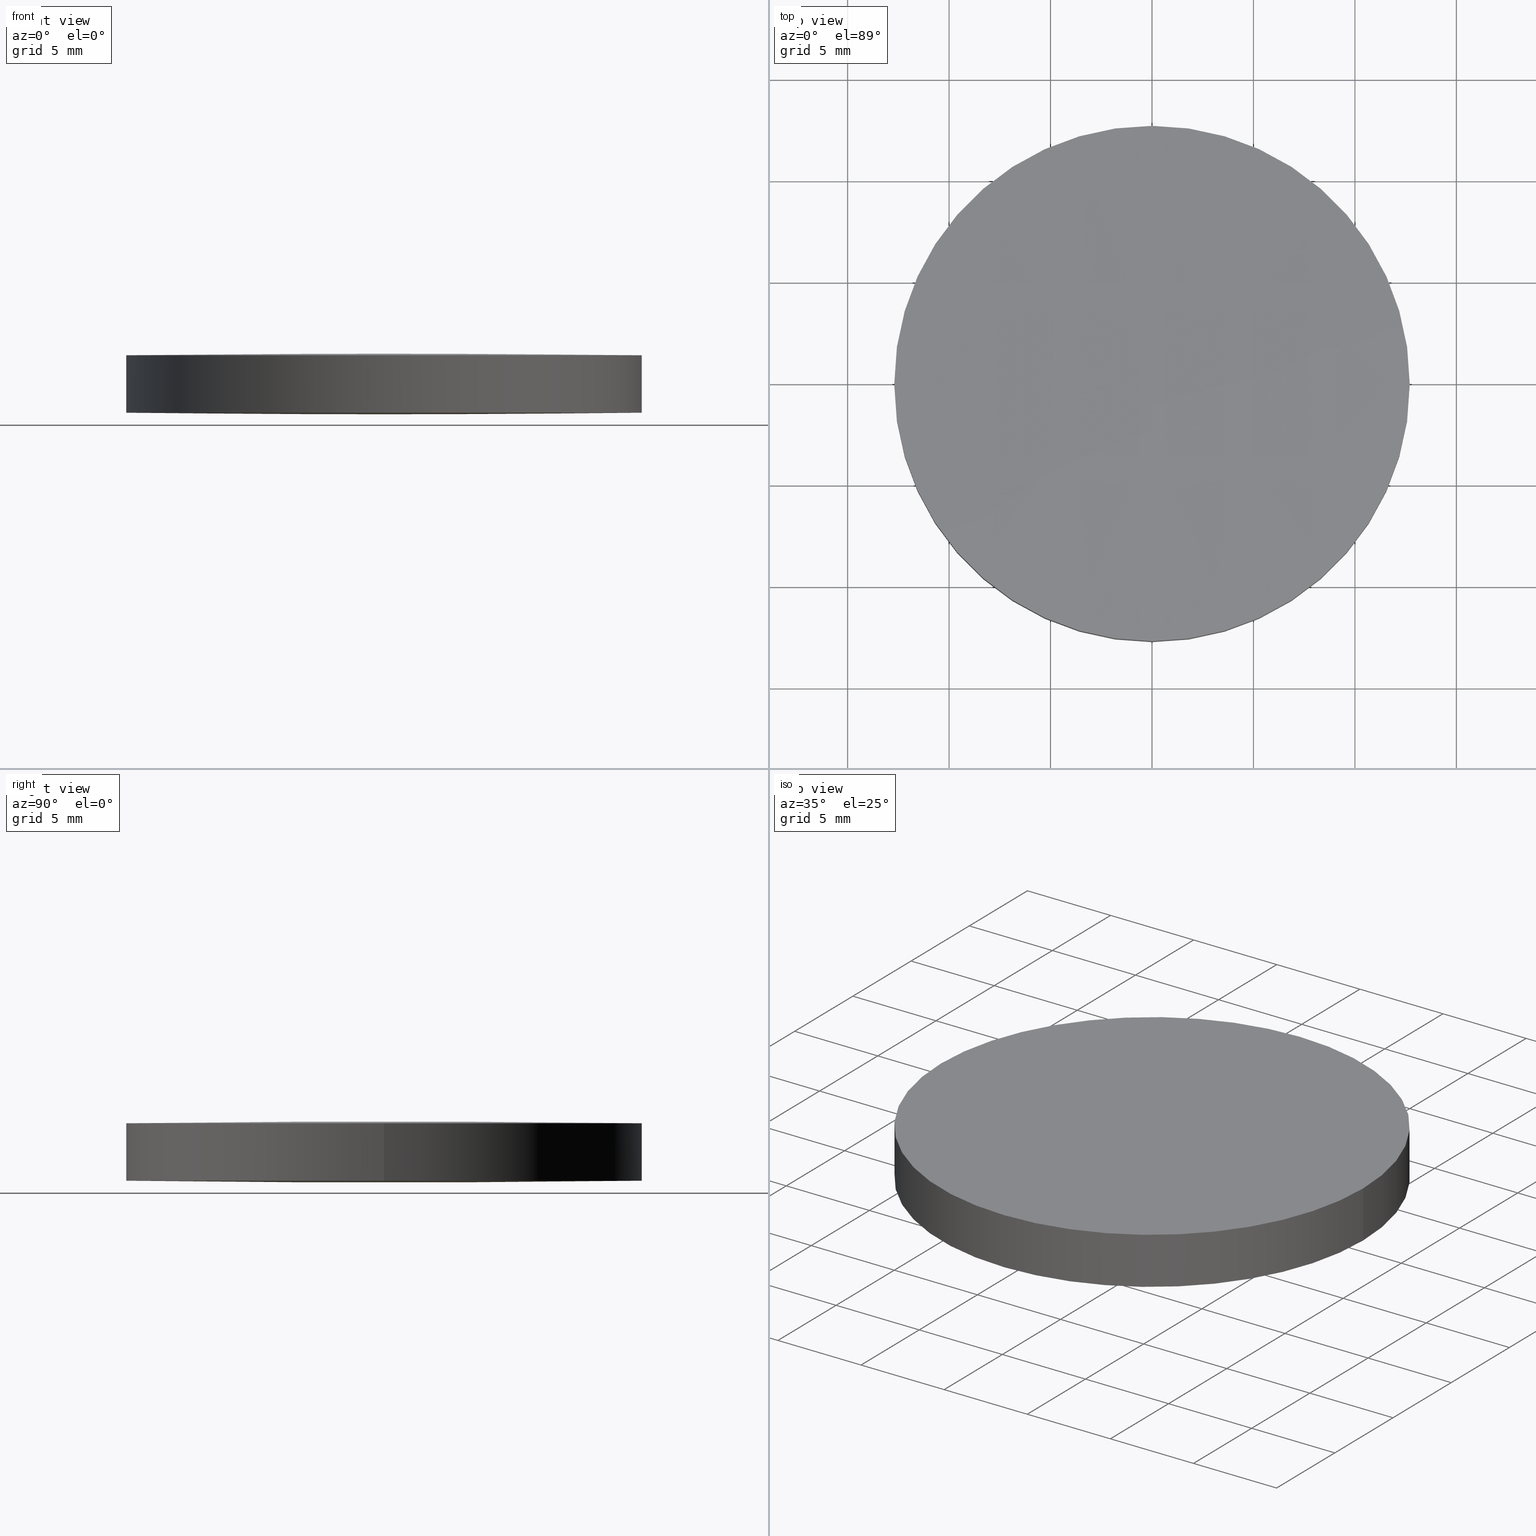
[diagram: canonical four-view strip — front | top / right | iso, engineering-drawing reading convention]
A machine part, canonical four-view strip (front | top / right | iso — engineering-drawing reading convention). The complete STEP part file that produces these views, byte-faithful:
ISO-10303-21;
HEADER;
FILE_DESCRIPTION (( 'STEP AP203' ),
    '1' );
FILE_NAME ('111-1260E UVFS bi-cx 25.4 F1000.STEP',
    '2019-01-07T12:38:46',
    ( '' ),
    ( '' ),
    'SwSTEP 2.0',
    'SolidWorks 2017',
    '' );
FILE_SCHEMA (( 'CONFIG_CONTROL_DESIGN' ));
ENDSEC;

DATA;
#1 = PRODUCT_DEFINITION ( 'UNKNOWN', '', #26, #247 ) ;
#2 = DIRECTION ( 'NONE',  ( 1.000000000000000000, 0.0000000000000000000, 0.0000000000000000000 ) ) ;
#3 = DIRECTION ( 'NONE',  ( 1.000000000000000000, 0.0000000000000000000, 0.0000000000000000000 ) ) ;
#4 = COORDINATED_UNIVERSAL_TIME_OFFSET ( 2, 0, .AHEAD. ) ;
#5 = DIRECTION ( 'NONE',  ( -0.0000000000000000000, -0.0000000000000000000, -1.000000000000000000 ) ) ;
#6 = APPROVAL ( #150, 'UNSPECIFIED' ) ;
#7 = CARTESIAN_POINT ( 'NONE',  ( -4.258503345560322700, -12.85239078956216800, 0.08678758069330495800 ) ) ;
#8 = APPROVAL_PERSON_ORGANIZATION ( #258, #32, #288 ) ;
#9 = ORIENTED_EDGE ( 'NONE', *, *, #70, .T. ) ;
#10 = CARTESIAN_POINT ( 'NONE',  ( 4.996003610813200500E-016, 2.442490654175340100E-015, 2.915258389649820100 ) ) ;
#11 = CARTESIAN_POINT ( 'NONE',  ( -12.77658382230925400, -4.284390731756754900, 0.05683319972356466000 ) ) ;
#12 = ADVANCED_BREP_SHAPE_REPRESENTATION ( '111-1260E UVFS bi-cx 25.4 F1000', ( #289, #223 ), #216 ) ;
#13 = CARTESIAN_POINT ( 'NONE',  ( -12.69999999999999900, 3.997792089092478900E-015, 0.08474161035017510600 ) ) ;
#14 = CC_DESIGN_PERSON_AND_ORGANIZATION_ASSIGNMENT ( #286, #16, ( #89 ) ) ;
#15 = CIRCLE ( 'NONE', #174, 12.69999999999999900 ) ;
#16 = PERSON_AND_ORGANIZATION_ROLE ( 'design_owner' ) ;
#17 = COORDINATED_UNIVERSAL_TIME_OFFSET ( 2, 0, .AHEAD. ) ;
#18 = CC_DESIGN_DATE_AND_TIME_ASSIGNMENT ( #158, #36, ( #1 ) ) ;
#19 = CIRCLE ( 'NONE', #186, 12.69999999999999900 ) ;
#20 = CC_DESIGN_SECURITY_CLASSIFICATION ( #293, ( #26 ) ) ;
#21 = LOCAL_TIME ( 14, 38, 46.00000000000000000, #17 ) ;
#22 = CARTESIAN_POINT ( 'NONE',  ( 4.996003610813200500E-016, 2.442490654175340100E-015, 0.08474161035017510600 ) ) ;
#23 = CARTESIAN_POINT ( 'NONE',  ( 8.516910752289769300, -12.85239078956216800, 2.884627415225856900 ) ) ;
#24 = LINE ( 'NONE', #68, #294 ) ;
#25 =( BOUNDED_SURFACE ( )  B_SPLINE_SURFACE ( 3, 3, ( 
 ( #231, #23, #135, #112 ),
 ( #114, #49, #205, #88 ),
 ( #69, #256, #230, #257 ),
 ( #280, #202, #179, #276 ) ),
 .UNSPECIFIED., .F., .F., .F. ) 
 B_SPLINE_SURFACE_WITH_KNOTS ( ( 4, 4 ),
 ( 4, 4 ),
 ( 0.0000000000000000000, 1.000000000000000000 ),
 ( 0.0000000000000000000, 1.000000000000000000 ),
 .UNSPECIFIED. ) 
 GEOMETRIC_REPRESENTATION_ITEM ( )  RATIONAL_B_SPLINE_SURFACE ( (
 ( 1.000000000000000000, 0.9999849808218425100, 0.9999849808218425100, 1.000000000000000000),
 ( 0.9999392052252507000, 0.9999241869601808200, 0.9999241869601808200, 0.9999392052252507000),
 ( 0.9999392052252507000, 0.9999241869601808200, 0.9999241869601808200, 0.9999392052252507000),
 ( 1.000000000000000000, 0.9999849808218425100, 0.9999849808218425100, 1.000000000000000000) ) ) 
 REPRESENTATION_ITEM ( '' )  SURFACE ( )  );
#26 = PRODUCT_DEFINITION_FORMATION_WITH_SPECIFIED_SOURCE ( 'ANY', '', #89, .NOT_KNOWN. ) ;
#27 = CARTESIAN_POINT ( 'NONE',  ( -12.69999999999999900, 3.997792089092478900E-015, 0.08474161035017510600 ) ) ;
#28 = CARTESIAN_POINT ( 'NONE',  ( -8.517946429817161700, 4.284390731757091500, -0.0003424723268542347300 ) ) ;
#29 = CARTESIAN_POINT ( 'NONE',  ( -4.259021190157219500, -4.284390731756754900, -0.02893095241527783200 ) ) ;
#30 = COORDINATED_UNIVERSAL_TIME_OFFSET ( 2, 0, .AHEAD. ) ;
#31 = CARTESIAN_POINT ( 'NONE',  ( -2.307182223049153400E-013, 12.85239078956250600, 0.08678758069330393100 ) ) ;
#32 = APPROVAL ( #218, 'UNSPECIFIED' ) ;
#33 = CARTESIAN_POINT ( 'NONE',  ( -12.77658382230925400, 4.284390731757091500, 0.05683319972356571500 ) ) ;
#34 = PERSON_AND_ORGANIZATION ( #84, #188 ) ;
#35 = CARTESIAN_POINT ( 'NONE',  ( 12.77658382230899300, 4.284390731757091500, 0.05683319972362106000 ) ) ;
#36 = DATE_TIME_ROLE ( 'creation_date' ) ;
#37 = APPLICATION_CONTEXT ( 'configuration controlled 3d designs of mechanical parts and assemblies' ) ;
#38 = PRODUCT_RELATED_PRODUCT_CATEGORY ( 'detail', '', ( #89 ) ) ;
#39 = LOCAL_TIME ( 14, 38, 46.00000000000000000, #4 ) ;
#40 = PERSON_AND_ORGANIZATION_ROLE ( 'creator' ) ;
#41 = LINE ( 'NONE', #13, #154 ) ;
#42 = AXIS2_PLACEMENT_3D ( 'NONE', #183, #87, #137 ) ;
#43 = VERTEX_POINT ( 'NONE', #157 ) ;
#44 = AXIS2_PLACEMENT_3D ( 'NONE', #275, #133, #2 ) ;
#45 = CARTESIAN_POINT ( 'NONE',  ( -12.69999999999999900, 3.997792089092478900E-015, 2.915258389649820100 ) ) ;
#46 = FACE_OUTER_BOUND ( 'NONE', #170, .T. ) ;
#47 = CC_DESIGN_APPROVAL ( #6, ( #293 ) ) ;
#48 = CARTESIAN_POINT ( 'NONE',  ( 0.0000000000000000000, -12.70000000000168900, 2.915258389649804100 ) ) ;
#49 = CARTESIAN_POINT ( 'NONE',  ( 8.517946429817161700, -4.284390731756754900, 3.000342472326858400 ) ) ;
#50 = CALENDAR_DATE ( 2019, 7, 1 ) ;
#51 = ORIENTED_EDGE ( 'NONE', *, *, #161, .F. ) ;
#52 = VERTEX_POINT ( 'NONE', #48 ) ;
#53 = DIRECTION ( 'NONE',  ( 1.000000000000000000, 0.0000000000000000000, 0.0000000000000000000 ) ) ;
#54 = PRODUCT_DEFINITION_SHAPE ( 'NONE', 'NONE',  #1 ) ;
#55 = CARTESIAN_POINT ( 'NONE',  ( -12.77658382230899300, -4.284390731756754900, 2.943166800276382200 ) ) ;
#56 = CARTESIAN_POINT ( 'NONE',  ( 4.258503345560082000, -12.85239078956216800, 0.08678758069335934500 ) ) ;
#57 = LOCAL_TIME ( 14, 38, 46.00000000000000000, #166 ) ;
#58 = ORIENTED_EDGE ( 'NONE', *, *, #177, .T. ) ;
#59 = CARTESIAN_POINT ( 'NONE',  ( -4.258503345560082000, 12.85239078956250400, 2.913212419306642900 ) ) ;
#60 = DIRECTION ( 'NONE',  ( 0.0000000000000000000, 0.0000000000000000000, 1.000000000000000000 ) ) ;
#61 = DIRECTION ( 'NONE',  ( 1.000000000000000000, 0.0000000000000000000, 0.0000000000000000000 ) ) ;
#62 = APPROVAL_STATUS ( 'not_yet_approved' ) ;
#63 = APPROVAL_ROLE ( '' ) ;
#64 = CC_DESIGN_PERSON_AND_ORGANIZATION_ASSIGNMENT ( #128, #124, ( #293 ) ) ;
#65 = ORIENTED_EDGE ( 'NONE', *, *, #127, .F. ) ;
#66 = DIRECTION ( 'NONE',  ( 0.0000000000000000000, -1.000000000000000000, 0.0000000000000000000 ) ) ;
#67 = ADVANCED_FACE ( 'NONE', ( #229 ), #121, .T. ) ;
#68 = CARTESIAN_POINT ( 'NONE',  ( 12.69999999999999900, 2.442490654175340100E-015, 0.08474161035017510600 ) ) ;
#69 = CARTESIAN_POINT ( 'NONE',  ( 12.77658382230925400, 4.284390731757091500, 2.943166800276436400 ) ) ;
#70 = EDGE_CURVE ( 'NONE', #274, #43, #24, .T. ) ;
#71 = DIRECTION ( 'NONE',  ( 1.000000000000000000, 0.0000000000000000000, 0.0000000000000000000 ) ) ;
#72 = CARTESIAN_POINT ( 'NONE',  ( 4.996003610813200500E-016, 2.442490654175340100E-015, 2.915258389649820100 ) ) ;
#73 = EDGE_LOOP ( 'NONE', ( #51, #138, #287 ) ) ;
#74 = CARTESIAN_POINT ( 'NONE',  ( 8.516910752289517100, -12.85239078956216800, 0.1153725847742025100 ) ) ;
#75 = CC_DESIGN_DATE_AND_TIME_ASSIGNMENT ( #115, #292, ( #293 ) ) ;
#76 = CARTESIAN_POINT ( 'NONE',  ( 0.0000000000000000000, -12.85239078956216800, 0.08678758069335934500 ) ) ;
#77 = DIRECTION ( 'NONE',  ( -1.000000000000000000, 0.0000000000000000000, 0.0000000000000000000 ) ) ;
#78 = ORIENTED_EDGE ( 'NONE', *, *, #126, .F. ) ;
#79 = ORIENTED_EDGE ( 'NONE', *, *, #95, .F. ) ;
#80 = CARTESIAN_POINT ( 'NONE',  ( 0.0000000000000000000, -4.284390731756754900, -0.02893095241522345200 ) ) ;
#81 = CARTESIAN_POINT ( 'NONE',  ( 8.517946429816911200, -4.284390731756754900, -0.0003424723267986693700 ) ) ;
#82 = CIRCLE ( 'NONE', #131, 12.69999999999999900 ) ;
#83 = ORIENTED_EDGE ( 'NONE', *, *, #208, .T. ) ;
#84 = PERSON ( 'UNSPECIFIED', 'UNSPECIFIED', 'UNSPECIFIED', ('UNSPECIFIED'), ('UNSPECIFIED'), ('UNSPECIFIED') ) ;
#85 =( BOUNDED_SURFACE ( )  B_SPLINE_SURFACE ( 3, 3, ( 
 ( #76, #56, #74, #118 ),
 ( #80, #217, #81, #152 ),
 ( #192, #168, #268, #35 ),
 ( #194, #215, #221, #246 ) ),
 .UNSPECIFIED., .F., .F., .F. ) 
 B_SPLINE_SURFACE_WITH_KNOTS ( ( 4, 4 ),
 ( 4, 4 ),
 ( 0.0000000000000000000, 1.000000000000000000 ),
 ( 0.0000000000000000000, 1.000000000000000000 ),
 .UNSPECIFIED. ) 
 GEOMETRIC_REPRESENTATION_ITEM ( )  RATIONAL_B_SPLINE_SURFACE ( (
 ( 1.000000000000000000, 0.9999849808218425100, 0.9999849808218425100, 1.000000000000000000),
 ( 0.9999392052252507000, 0.9999241869601808200, 0.9999241869601808200, 0.9999392052252507000),
 ( 0.9999392052252507000, 0.9999241869601808200, 0.9999241869601808200, 0.9999392052252507000),
 ( 1.000000000000000000, 0.9999849808218425100, 0.9999849808218425100, 1.000000000000000000) ) ) 
 REPRESENTATION_ITEM ( '' )  SURFACE ( )  );
#86 = PERSON_AND_ORGANIZATION ( #84, #188 ) ;
#87 = DIRECTION ( 'NONE',  ( -0.0000000000000000000, -0.0000000000000000000, -1.000000000000000000 ) ) ;
#88 = CARTESIAN_POINT ( 'NONE',  ( 2.307182223049153400E-013, -4.284390731756754900, 3.028930952415281200 ) ) ;
#89 = PRODUCT ( '111-1260E UVFS bi-cx 25.4 F1000', '111-1260E UVFS bi-cx 25.4 F1000', '', ( #149 ) ) ;
#90 = DIRECTION ( 'NONE',  ( 1.000000000000000000, 0.0000000000000000000, 0.0000000000000000000 ) ) ;
#91 = ADVANCED_FACE ( 'NONE', ( #46 ), #25, .T. ) ;
#92 = CARTESIAN_POINT ( 'NONE',  ( -8.516910752289769300, 12.85239078956250400, 0.1153725847741458700 ) ) ;
#93 = CARTESIAN_POINT ( 'NONE',  ( -8.516910752289769300, -12.85239078956216800, 0.1153725847741458700 ) ) ;
#94 = FACE_OUTER_BOUND ( 'NONE', #239, .T. ) ;
#95 = EDGE_CURVE ( 'NONE', #107, #96, #19, .T. ) ;
#96 = VERTEX_POINT ( 'NONE', #180 ) ;
#97 = CARTESIAN_POINT ( 'NONE',  ( -8.517946429816911200, -4.284390731756754900, 3.000342472326801500 ) ) ;
#98 = CARTESIAN_POINT ( 'NONE',  ( -12.77658382230899300, 4.284390731757091500, 2.943166800276381300 ) ) ;
#99 = APPROVAL_DATE_TIME ( #119, #32 ) ;
#100 = CIRCLE ( 'NONE', #42, 12.69999999999999900 ) ;
#101 = DIRECTION ( 'NONE',  ( 0.0000000000000000000, 0.0000000000000000000, 1.000000000000000000 ) ) ;
#102 = ORIENTED_EDGE ( 'NONE', *, *, #284, .F. ) ;
#103 = DIRECTION ( 'NONE',  ( 1.000000000000000000, 0.0000000000000000000, 0.0000000000000000000 ) ) ;
#104 = AXIS2_PLACEMENT_3D ( 'NONE', #207, #71, #66 ) ;
#105 = PERSON_AND_ORGANIZATION_ROLE ( 'design_supplier' ) ;
#106 = APPROVAL_DATE_TIME ( #219, #6 ) ;
#107 = VERTEX_POINT ( 'NONE', #27 ) ;
#108 = CALENDAR_DATE ( 2019, 7, 1 ) ;
#109 = ORIENTED_EDGE ( 'NONE', *, *, #161, .T. ) ;
#110 =( BOUNDED_SURFACE ( )  B_SPLINE_SURFACE ( 3, 3, ( 
 ( #212, #93, #7, #264 ),
 ( #11, #167, #29, #164 ),
 ( #33, #28, #117, #281 ),
 ( #143, #92, #190, #31 ) ),
 .UNSPECIFIED., .F., .F., .T. ) 
 B_SPLINE_SURFACE_WITH_KNOTS ( ( 4, 4 ),
 ( 4, 4 ),
 ( 0.0000000000000000000, 1.000000000000000000 ),
 ( 0.0000000000000000000, 1.000000000000000000 ),
 .UNSPECIFIED. ) 
 GEOMETRIC_REPRESENTATION_ITEM ( )  RATIONAL_B_SPLINE_SURFACE ( (
 ( 1.000000000000000000, 0.9999849808218425100, 0.9999849808218425100, 1.000000000000000000),
 ( 0.9999392052252507000, 0.9999241869601808200, 0.9999241869601808200, 0.9999392052252507000),
 ( 0.9999392052252507000, 0.9999241869601808200, 0.9999241869601808200, 0.9999392052252507000),
 ( 1.000000000000000000, 0.9999849808218425100, 0.9999849808218425100, 1.000000000000000000) ) ) 
 REPRESENTATION_ITEM ( '' )  SURFACE ( )  );
#111 = SHAPE_DEFINITION_REPRESENTATION ( #54, #12 ) ;
#112 = CARTESIAN_POINT ( 'NONE',  ( 2.307182223049153400E-013, -12.85239078956216800, 2.913212419306698800 ) ) ;
#113 = ORIENTED_EDGE ( 'NONE', *, *, #177, .F. ) ;
#114 = CARTESIAN_POINT ( 'NONE',  ( 12.77658382230925400, -4.284390731756754900, 2.943166800276437700 ) ) ;
#115 = DATE_AND_TIME ( #248, #39 ) ;
#116 = CARTESIAN_POINT ( 'NONE',  ( -8.517946429816911200, 4.284390731757091500, 3.000342472326800600 ) ) ;
#117 = CARTESIAN_POINT ( 'NONE',  ( -4.259021190157219500, 4.284390731757091500, -0.02893095241527677400 ) ) ;
#118 = CARTESIAN_POINT ( 'NONE',  ( 12.77503034684978200, -12.85239078956216800, 0.1725413049660782800 ) ) ;
#119 = DATE_AND_TIME ( #178, #249 ) ;
#120 = DIRECTION ( 'NONE',  ( 1.000000000000000000, 0.0000000000000000000, 0.0000000000000000000 ) ) ;
#121 = CYLINDRICAL_SURFACE ( 'NONE', #141, 12.69999999999999900 ) ;
#122 =( NAMED_UNIT ( * ) PLANE_ANGLE_UNIT ( ) SI_UNIT ( $, .RADIAN. ) );
#123 = ORIENTED_EDGE ( 'NONE', *, *, #252, .F. ) ;
#124 = PERSON_AND_ORGANIZATION_ROLE ( 'classification_officer' ) ;
#125 = DIRECTION ( 'NONE',  ( -0.0000000000000000000, -0.0000000000000000000, -1.000000000000000000 ) ) ;
#126 = EDGE_CURVE ( 'NONE', #43, #52, #100, .T. ) ;
#127 = EDGE_CURVE ( 'NONE', #200, #96, #159, .T. ) ;
#128 = PERSON_AND_ORGANIZATION ( #84, #188 ) ;
#129 = CIRCLE ( 'NONE', #156, 12.69999999999999900 ) ;
#130 = ORIENTED_EDGE ( 'NONE', *, *, #145, .T. ) ;
#131 = AXIS2_PLACEMENT_3D ( 'NONE', #290, #125, #103 ) ;
#132 = APPROVAL_PERSON_ORGANIZATION ( #266, #295, #63 ) ;
#133 = DIRECTION ( 'NONE',  ( -0.0000000000000000000, -0.0000000000000000000, -1.000000000000000000 ) ) ;
#134 = DIRECTION ( 'NONE',  ( 0.0000000000000000000, 0.0000000000000000000, 1.000000000000000000 ) ) ;
#135 = CARTESIAN_POINT ( 'NONE',  ( 4.258503345560322700, -12.85239078956216800, 2.913212419306697500 ) ) ;
#136 = AXIS2_PLACEMENT_3D ( 'NONE', #10, #261, #139 ) ;
#137 = DIRECTION ( 'NONE',  ( 1.000000000000000000, 0.0000000000000000000, 0.0000000000000000000 ) ) ;
#138 = ORIENTED_EDGE ( 'NONE', *, *, #252, .T. ) ;
#139 = DIRECTION ( 'NONE',  ( 1.000000000000000000, 0.0000000000000000000, 0.0000000000000000000 ) ) ;
#140 = DIRECTION ( 'NONE',  ( -0.0000000000000000000, -0.0000000000000000000, -1.000000000000000000 ) ) ;
#141 = AXIS2_PLACEMENT_3D ( 'NONE', #255, #134, #3 ) ;
#142 = CIRCLE ( 'NONE', #227, 12.69999999999999900 ) ;
#143 = CARTESIAN_POINT ( 'NONE',  ( -12.77503034685004100, 12.85239078956250600, 0.1725413049660229300 ) ) ;
#144 = CARTESIAN_POINT ( 'NONE',  ( 0.0000000000000000000, -12.85239078956216800, 2.913212419306643300 ) ) ;
#145 = EDGE_CURVE ( 'NONE', #96, #274, #147, .T. ) ;
#146 = CYLINDRICAL_SURFACE ( 'NONE', #197, 12.69999999999999900 ) ;
#147 = CIRCLE ( 'NONE', #44, 12.69999999999999900 ) ;
#148 = DIRECTION ( 'NONE',  ( 0.0000000000000000000, 0.0000000000000000000, 1.000000000000000000 ) ) ;
#149 = MECHANICAL_CONTEXT ( 'NONE', #37, 'mechanical' ) ;
#150 = APPROVAL_STATUS ( 'not_yet_approved' ) ;
#151 = APPROVAL_PERSON_ORGANIZATION ( #253, #6, #265 ) ;
#152 = CARTESIAN_POINT ( 'NONE',  ( 12.77658382230899300, -4.284390731756754900, 0.05683319972362000500 ) ) ;
#153 = ORIENTED_EDGE ( 'NONE', *, *, #145, .F. ) ;
#154 = VECTOR ( 'NONE', #148, 1000.000000000000000 ) ;
#155 = VERTEX_POINT ( 'NONE', #45 ) ;
#156 = AXIS2_PLACEMENT_3D ( 'NONE', #283, #140, #211 ) ;
#157 = CARTESIAN_POINT ( 'NONE',  ( 12.69999999999999900, 2.442490654175340100E-015, 2.915258389649820100 ) ) ;
#158 = DATE_AND_TIME ( #254, #21 ) ;
#159 = CIRCLE ( 'NONE', #104, 951.7000000000000500 ) ;
#160 = CARTESIAN_POINT ( 'NONE',  ( 0.0000000000000000000, 12.70000000000191800, 2.915258389649804100 ) ) ;
#161 = EDGE_CURVE ( 'NONE', #52, #155, #225, .T. ) ;
#162 = VERTEX_POINT ( 'NONE', #160 ) ;
#163 = CARTESIAN_POINT ( 'NONE',  ( -8.516910752289518900, -12.85239078956216800, 2.884627415225800000 ) ) ;
#164 = CARTESIAN_POINT ( 'NONE',  ( -2.307182223049153400E-013, -4.284390731756754900, -0.02893095241527887000 ) ) ;
#165 = CARTESIAN_POINT ( 'NONE',  ( 0.0000000000000000000, 4.284390731757091500, 3.028930952415224800 ) ) ;
#166 = COORDINATED_UNIVERSAL_TIME_OFFSET ( 2, 0, .AHEAD. ) ;
#167 = CARTESIAN_POINT ( 'NONE',  ( -8.517946429817161700, -4.284390731756754900, -0.0003424723268552918300 ) ) ;
#168 = CARTESIAN_POINT ( 'NONE',  ( 4.259021190156979700, 4.284390731757091500, -0.02893095241522240100 ) ) ;
#169 = APPLICATION_CONTEXT ( 'configuration controlled 3d designs of mechanical parts and assemblies' ) ;
#170 = EDGE_LOOP ( 'NONE', ( #123, #78, #113 ) ) ;
#171 = ORIENTED_EDGE ( 'NONE', *, *, #251, .F. ) ;
#172 = DIRECTION ( 'NONE',  ( 0.0000000000000000000, -1.000000000000000000, 0.0000000000000000000 ) ) ;
#173 = APPLICATION_PROTOCOL_DEFINITION ( 'international standard', 'config_control_design', 1994, #37 ) ;
#174 = AXIS2_PLACEMENT_3D ( 'NONE', #72, #184, #53 ) ;
#175 = EDGE_CURVE ( 'NONE', #155, #162, #129, .T. ) ;
#176 = LOCAL_TIME ( 14, 38, 46.00000000000000000, #238 ) ;
#177 = EDGE_CURVE ( 'NONE', #162, #43, #15, .T. ) ;
#178 = CALENDAR_DATE ( 2019, 7, 1 ) ;
#179 = CARTESIAN_POINT ( 'NONE',  ( 4.258503345560322700, 12.85239078956250400, 2.913212419306697500 ) ) ;
#180 = CARTESIAN_POINT ( 'NONE',  ( 0.0000000000000000000, 12.70000000000191800, 0.08474161035019461800 ) ) ;
#181 = ADVANCED_FACE ( 'NONE', ( #259 ), #110, .T. ) ;
#182 = ORIENTED_EDGE ( 'NONE', *, *, #70, .F. ) ;
#183 = CARTESIAN_POINT ( 'NONE',  ( 4.996003610813200500E-016, 2.442490654175340100E-015, 2.915258389649820100 ) ) ;
#184 = DIRECTION ( 'NONE',  ( -0.0000000000000000000, -0.0000000000000000000, -1.000000000000000000 ) ) ;
#185 = CARTESIAN_POINT ( 'NONE',  ( 0.0000000000000000000, 12.85239078956250600, 2.913212419306643300 ) ) ;
#186 = AXIS2_PLACEMENT_3D ( 'NONE', #22, #5, #90 ) ;
#187 = CARTESIAN_POINT ( 'NONE',  ( -4.258503345560082000, -12.85239078956216800, 2.913212419306642900 ) ) ;
#188 = ORGANIZATION ( 'UNSPECIFIED', 'UNSPECIFIED', '' ) ;
#189 = CARTESIAN_POINT ( 'NONE',  ( -4.259021190156979700, 4.284390731757091500, 3.028930952415225300 ) ) ;
#190 = CARTESIAN_POINT ( 'NONE',  ( -4.258503345560322700, 12.85239078956250400, 0.08678758069330495800 ) ) ;
#191 = CARTESIAN_POINT ( 'NONE',  ( 0.0000000000000000000, 2.273736754432320100E-013, -948.7000000000000500 ) ) ;
#192 = CARTESIAN_POINT ( 'NONE',  ( 0.0000000000000000000, 4.284390731757091500, -0.02893095241522239400 ) ) ;
#193 = CLOSED_SHELL ( 'NONE', ( #250, #199, #67, #181, #279, #91 ) ) ;
#194 = CARTESIAN_POINT ( 'NONE',  ( 0.0000000000000000000, 12.85239078956250600, 0.08678758069335934500 ) ) ;
#195 = CARTESIAN_POINT ( 'NONE',  ( 0.0000000000000000000, 0.0000000000000000000, 0.0000000000000000000 ) ) ;
#196 = SECURITY_CLASSIFICATION_LEVEL ( 'unclassified' ) ;
#197 = AXIS2_PLACEMENT_3D ( 'NONE', #271, #60, #241 ) ;
#198 = PERSON_AND_ORGANIZATION ( #84, #188 ) ;
#199 = ADVANCED_FACE ( 'NONE', ( #220 ), #206, .T. ) ;
#200 = VERTEX_POINT ( 'NONE', #234 ) ;
#201 = UNCERTAINTY_MEASURE_WITH_UNIT (LENGTH_MEASURE( 1.000000000000000100E-005 ), #242, 'distance_accuracy_value', 'NONE');
#202 = CARTESIAN_POINT ( 'NONE',  ( 8.516910752289769300, 12.85239078956250400, 2.884627415225856900 ) ) ;
#203 = CIRCLE ( 'NONE', #232, 951.7000000000000500 ) ;
#204 = EDGE_LOOP ( 'NONE', ( #79, #214, #267, #58, #182, #153 ) ) ;
#205 = CARTESIAN_POINT ( 'NONE',  ( 4.259021190157219500, -4.284390731756754900, 3.028930952415280800 ) ) ;
#206 =( BOUNDED_SURFACE ( )  B_SPLINE_SURFACE ( 3, 3, ( 
 ( #144, #187, #163, #233 ),
 ( #240, #235, #97, #55 ),
 ( #165, #189, #116, #98 ),
 ( #185, #59, #213, #209 ) ),
 .UNSPECIFIED., .F., .F., .T. ) 
 B_SPLINE_SURFACE_WITH_KNOTS ( ( 4, 4 ),
 ( 4, 4 ),
 ( 0.0000000000000000000, 1.000000000000000000 ),
 ( 0.0000000000000000000, 1.000000000000000000 ),
 .UNSPECIFIED. ) 
 GEOMETRIC_REPRESENTATION_ITEM ( )  RATIONAL_B_SPLINE_SURFACE ( (
 ( 1.000000000000000000, 0.9999849808218425100, 0.9999849808218425100, 1.000000000000000000),
 ( 0.9999392052252507000, 0.9999241869601808200, 0.9999241869601808200, 0.9999392052252507000),
 ( 0.9999392052252507000, 0.9999241869601808200, 0.9999241869601808200, 0.9999392052252507000),
 ( 1.000000000000000000, 0.9999849808218425100, 0.9999849808218425100, 1.000000000000000000) ) ) 
 REPRESENTATION_ITEM ( '' )  SURFACE ( )  );
#207 = CARTESIAN_POINT ( 'NONE',  ( 0.0000000000000000000, 2.273736754432320100E-013, 951.7000000000000500 ) ) ;
#208 = EDGE_CURVE ( 'NONE', #200, #107, #142, .T. ) ;
#209 = CARTESIAN_POINT ( 'NONE',  ( -12.77503034684978200, 12.85239078956250600, 2.827458695033924200 ) ) ;
#210 = DATE_AND_TIME ( #108, #57 ) ;
#211 = DIRECTION ( 'NONE',  ( 1.000000000000000000, 0.0000000000000000000, 0.0000000000000000000 ) ) ;
#212 = CARTESIAN_POINT ( 'NONE',  ( -12.77503034685004100, -12.85239078956216800, 0.1725413049660229300 ) ) ;
#213 = CARTESIAN_POINT ( 'NONE',  ( -8.516910752289518900, 12.85239078956250400, 2.884627415225800000 ) ) ;
#214 = ORIENTED_EDGE ( 'NONE', *, *, #251, .T. ) ;
#215 = CARTESIAN_POINT ( 'NONE',  ( 4.258503345560082000, 12.85239078956250400, 0.08678758069335934500 ) ) ;
#216 =( GEOMETRIC_REPRESENTATION_CONTEXT ( 3 ) GLOBAL_UNCERTAINTY_ASSIGNED_CONTEXT ( ( #201 ) ) GLOBAL_UNIT_ASSIGNED_CONTEXT ( ( #242, #122, #291 ) ) REPRESENTATION_CONTEXT ( 'NONE', 'WORKASPACE' ) );
#217 = CARTESIAN_POINT ( 'NONE',  ( 4.259021190156979700, -4.284390731756754900, -0.02893095241522345600 ) ) ;
#218 = APPROVAL_STATUS ( 'not_yet_approved' ) ;
#219 = DATE_AND_TIME ( #50, #176 ) ;
#220 = FACE_OUTER_BOUND ( 'NONE', #73, .T. ) ;
#221 = CARTESIAN_POINT ( 'NONE',  ( 8.516910752289517100, 12.85239078956250400, 0.1153725847742025100 ) ) ;
#222 = ORIENTED_EDGE ( 'NONE', *, *, #95, .T. ) ;
#223 = AXIS2_PLACEMENT_3D ( 'NONE', #195, #101, #61 ) ;
#224 = APPROVAL_DATE_TIME ( #210, #295 ) ;
#225 = CIRCLE ( 'NONE', #136, 12.69999999999999900 ) ;
#226 = ORIENTED_EDGE ( 'NONE', *, *, #126, .T. ) ;
#227 = AXIS2_PLACEMENT_3D ( 'NONE', #285, #237, #120 ) ;
#228 = EDGE_LOOP ( 'NONE', ( #171, #243, #102, #9, #226, #109 ) ) ;
#229 = FACE_OUTER_BOUND ( 'NONE', #204, .T. ) ;
#230 = CARTESIAN_POINT ( 'NONE',  ( 4.259021190157219500, 4.284390731757091500, 3.028930952415279400 ) ) ;
#231 = CARTESIAN_POINT ( 'NONE',  ( 12.77503034685004100, -12.85239078956216800, 2.827458695033979700 ) ) ;
#232 = AXIS2_PLACEMENT_3D ( 'NONE', #191, #77, #172 ) ;
#233 = CARTESIAN_POINT ( 'NONE',  ( -12.77503034684978200, -12.85239078956216800, 2.827458695033924200 ) ) ;
#234 = CARTESIAN_POINT ( 'NONE',  ( 0.0000000000000000000, -12.70000000000168900, 0.08474161035019461800 ) ) ;
#235 = CARTESIAN_POINT ( 'NONE',  ( -4.259021190156979700, -4.284390731756754900, 3.028930952415226100 ) ) ;
#236 = CC_DESIGN_PERSON_AND_ORGANIZATION_ASSIGNMENT ( #86, #40, ( #1 ) ) ;
#237 = DIRECTION ( 'NONE',  ( -0.0000000000000000000, -0.0000000000000000000, -1.000000000000000000 ) ) ;
#238 = COORDINATED_UNIVERSAL_TIME_OFFSET ( 2, 0, .AHEAD. ) ;
#239 = EDGE_LOOP ( 'NONE', ( #282, #260, #130 ) ) ;
#240 = CARTESIAN_POINT ( 'NONE',  ( 0.0000000000000000000, -4.284390731756754900, 3.028930952415225700 ) ) ;
#241 = DIRECTION ( 'NONE',  ( 1.000000000000000000, 0.0000000000000000000, 0.0000000000000000000 ) ) ;
#242 =( LENGTH_UNIT ( ) NAMED_UNIT ( * ) SI_UNIT ( .MILLI., .METRE. ) );
#243 = ORIENTED_EDGE ( 'NONE', *, *, #208, .F. ) ;
#244 = PERSON_AND_ORGANIZATION_ROLE ( 'creator' ) ;
#245 = CC_DESIGN_APPROVAL ( #32, ( #26 ) ) ;
#246 = CARTESIAN_POINT ( 'NONE',  ( 12.77503034684978200, 12.85239078956250600, 0.1725413049660782800 ) ) ;
#247 = DESIGN_CONTEXT ( 'detailed design', #169, 'design' ) ;
#248 = CALENDAR_DATE ( 2019, 7, 1 ) ;
#249 = LOCAL_TIME ( 14, 38, 46.00000000000000000, #30 ) ;
#250 = ADVANCED_FACE ( 'NONE', ( #94 ), #85, .T. ) ;
#251 = EDGE_CURVE ( 'NONE', #107, #155, #41, .T. ) ;
#252 = EDGE_CURVE ( 'NONE', #52, #162, #203, .T. ) ;
#253 = PERSON_AND_ORGANIZATION ( #84, #188 ) ;
#254 = CALENDAR_DATE ( 2019, 7, 1 ) ;
#255 = CARTESIAN_POINT ( 'NONE',  ( 4.996003610813200500E-016, 2.442490654175340100E-015, 0.08474161035017510600 ) ) ;
#256 = CARTESIAN_POINT ( 'NONE',  ( 8.517946429817161700, 4.284390731757091500, 3.000342472326857000 ) ) ;
#257 = CARTESIAN_POINT ( 'NONE',  ( 2.307182223049153400E-013, 4.284390731757091500, 3.028930952415279900 ) ) ;
#258 = PERSON_AND_ORGANIZATION ( #84, #188 ) ;
#259 = FACE_OUTER_BOUND ( 'NONE', #272, .T. ) ;
#260 = ORIENTED_EDGE ( 'NONE', *, *, #127, .T. ) ;
#261 = DIRECTION ( 'NONE',  ( -0.0000000000000000000, -0.0000000000000000000, -1.000000000000000000 ) ) ;
#262 = CC_DESIGN_PERSON_AND_ORGANIZATION_ASSIGNMENT ( #34, #244, ( #26 ) ) ;
#263 = CARTESIAN_POINT ( 'NONE',  ( 12.69999999999999900, 2.442490654175340100E-015, 0.08474161035017510600 ) ) ;
#264 = CARTESIAN_POINT ( 'NONE',  ( -2.307182223049153400E-013, -12.85239078956216800, 0.08678758069330393100 ) ) ;
#265 = APPROVAL_ROLE ( '' ) ;
#266 = PERSON_AND_ORGANIZATION ( #84, #188 ) ;
#267 = ORIENTED_EDGE ( 'NONE', *, *, #175, .T. ) ;
#268 = CARTESIAN_POINT ( 'NONE',  ( 8.517946429816911200, 4.284390731757091500, -0.0003424723267976122700 ) ) ;
#269 = CC_DESIGN_APPROVAL ( #295, ( #1 ) ) ;
#270 = APPLICATION_PROTOCOL_DEFINITION ( 'international standard', 'config_control_design', 1994, #169 ) ;
#271 = CARTESIAN_POINT ( 'NONE',  ( 4.996003610813200500E-016, 2.442490654175340100E-015, 0.08474161035017510600 ) ) ;
#272 = EDGE_LOOP ( 'NONE', ( #65, #83, #222 ) ) ;
#273 = CC_DESIGN_PERSON_AND_ORGANIZATION_ASSIGNMENT ( #198, #105, ( #26 ) ) ;
#274 = VERTEX_POINT ( 'NONE', #263 ) ;
#275 = CARTESIAN_POINT ( 'NONE',  ( 4.996003610813200500E-016, 2.442490654175340100E-015, 0.08474161035017510600 ) ) ;
#276 = CARTESIAN_POINT ( 'NONE',  ( 2.307182223049153400E-013, 12.85239078956250600, 2.913212419306698800 ) ) ;
#277 = FACE_OUTER_BOUND ( 'NONE', #228, .T. ) ;
#278 = DIRECTION ( 'NONE',  ( 0.0000000000000000000, 0.0000000000000000000, 1.000000000000000000 ) ) ;
#279 = ADVANCED_FACE ( 'NONE', ( #277 ), #146, .T. ) ;
#280 = CARTESIAN_POINT ( 'NONE',  ( 12.77503034685004100, 12.85239078956250600, 2.827458695033979700 ) ) ;
#281 = CARTESIAN_POINT ( 'NONE',  ( -2.307182223049153400E-013, 4.284390731757091500, -0.02893095241527781200 ) ) ;
#282 = ORIENTED_EDGE ( 'NONE', *, *, #284, .T. ) ;
#283 = CARTESIAN_POINT ( 'NONE',  ( 4.996003610813200500E-016, 2.442490654175340100E-015, 2.915258389649820100 ) ) ;
#284 = EDGE_CURVE ( 'NONE', #274, #200, #82, .T. ) ;
#285 = CARTESIAN_POINT ( 'NONE',  ( 4.996003610813200500E-016, 2.442490654175340100E-015, 0.08474161035017510600 ) ) ;
#286 = PERSON_AND_ORGANIZATION ( #84, #188 ) ;
#287 = ORIENTED_EDGE ( 'NONE', *, *, #175, .F. ) ;
#288 = APPROVAL_ROLE ( '' ) ;
#289 = MANIFOLD_SOLID_BREP ( 'Imported1', #193 ) ;
#290 = CARTESIAN_POINT ( 'NONE',  ( 4.996003610813200500E-016, 2.442490654175340100E-015, 0.08474161035017510600 ) ) ;
#291 =( NAMED_UNIT ( * ) SI_UNIT ( $, .STERADIAN. ) SOLID_ANGLE_UNIT ( ) );
#292 = DATE_TIME_ROLE ( 'classification_date' ) ;
#293 = SECURITY_CLASSIFICATION ( '', '', #196 ) ;
#294 = VECTOR ( 'NONE', #278, 1000.000000000000000 ) ;
#295 = APPROVAL ( #62, 'UNSPECIFIED' ) ;
ENDSEC;
END-ISO-10303-21;
